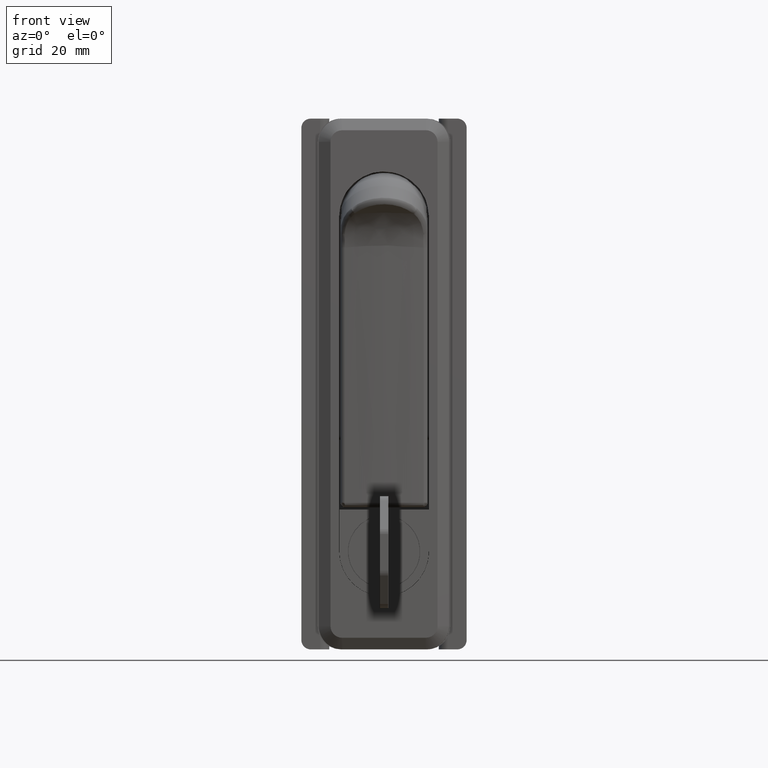
[diagram: clean part render]
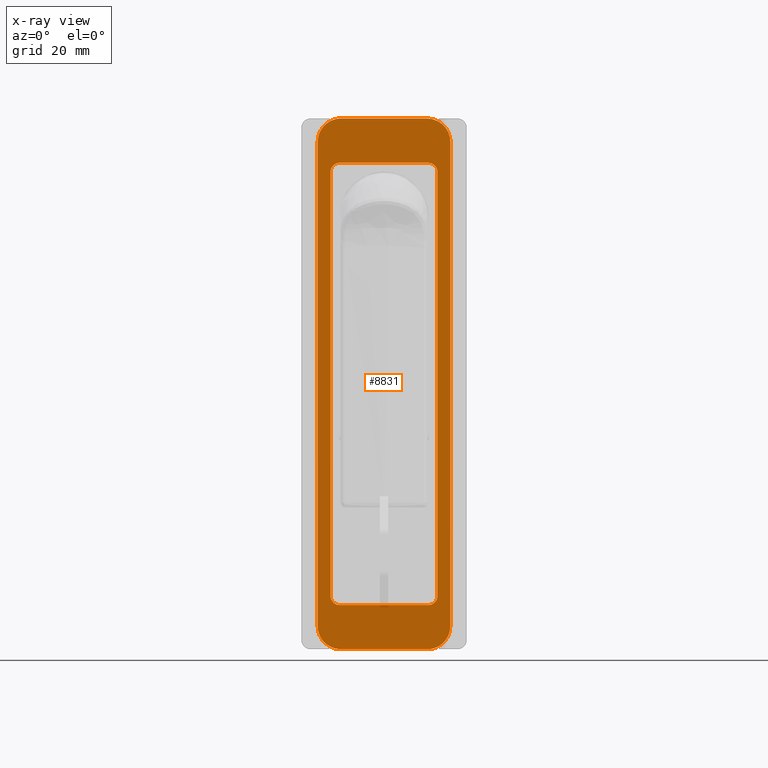
[diagram: x-ray — body ghosted, one internal face saturated and labeled with its STEP entity id]
A machine part, front view, then the same camera in x-ray: the body is ghosted and one INTERNAL B-rep face — a face not visible from any outside direction — is saturated and labeled: STEP entity #8831.
In plain terms, the highlighted face is a freeform B-spline surface patch.
Its self-contained STEP definition (entity closure, byte-faithful):
#8646=CARTESIAN_POINT('',(0.0,-15.673574944761469,26.694299779045870));
#8647=CARTESIAN_POINT('',(0.0,15.673575709191040,26.694299779045870));
#8648=CARTESIAN_POINT('',(0.0,-15.673574944761469,-98.694302836764123));
#8649=CARTESIAN_POINT('',(0.0,15.673575709191040,-98.694302836764123));
#8650=B_SPLINE_SURFACE_WITH_KNOTS('',1,1,((#8646,#8648),(#8647,#8649)),.UNSPECIFIED.,.F.,.F.,.U.,(2,2),(2,2),(0.0,31.347150653952511),(0.0,125.388602615810000),.UNSPECIFIED.);
#8651=CARTESIAN_POINT('',(0.0,-9.250000000000000,21.0));
#8652=VERTEX_POINT('',#8651);
#8653=CARTESIAN_POINT('',(0.0,9.250000000000000,21.0));
#8654=VERTEX_POINT('',#8653);
#8655=CARTESIAN_POINT('',(0.0,-9.250000000000000,21.0));
#8656=CARTESIAN_POINT('',(0.0,9.250000000000000,21.0));
#8657=QUASI_UNIFORM_CURVE('',1,(#8655,#8656),.UNSPECIFIED.,.F.,.U.);
#8658=EDGE_CURVE('',#8652,#8654,#8657,.T.);
#8659=ORIENTED_EDGE('',*,*,#8658,.T.);
#8660=CARTESIAN_POINT('',(0.0,14.250000000000000,16.0));
#8661=VERTEX_POINT('',#8660);
#8662=CARTESIAN_POINT('',(0.0,14.250000000000000,16.0));
#8663=CARTESIAN_POINT('',(0.0,14.249999999999996,21.000000000000004));
#8664=CARTESIAN_POINT('',(0.0,9.250000000000000,21.0));
#8672=(BOUNDED_CURVE()B_SPLINE_CURVE(2,(#8662,#8663,#8664),.UNSPECIFIED.,.F.,.U.)CURVE()GEOMETRIC_REPRESENTATION_ITEM()QUASI_UNIFORM_CURVE()RATIONAL_B_SPLINE_CURVE((1.0,0.707106781186548,1.0))REPRESENTATION_ITEM(''));
#8673=EDGE_CURVE('',#8661,#8654,#8672,.T.);
#8674=ORIENTED_EDGE('',*,*,#8673,.F.);
#8675=CARTESIAN_POINT('',(0.0,14.250000000000000,-88.0));
#8676=VERTEX_POINT('',#8675);
#8677=CARTESIAN_POINT('',(0.0,14.250000000000000,16.0));
#8678=CARTESIAN_POINT('',(0.0,14.250000000000000,-88.0));
#8679=QUASI_UNIFORM_CURVE('',1,(#8677,#8678),.UNSPECIFIED.,.F.,.U.);
#8680=EDGE_CURVE('',#8661,#8676,#8679,.T.);
#8681=ORIENTED_EDGE('',*,*,#8680,.T.);
#8682=CARTESIAN_POINT('',(0.0,9.250000000000000,-93.0));
#8683=VERTEX_POINT('',#8682);
#8684=CARTESIAN_POINT('',(0.0,9.250000000000000,-93.0));
#8685=CARTESIAN_POINT('',(0.0,14.249999999999996,-93.0));
#8686=CARTESIAN_POINT('',(0.0,14.250000000000000,-88.0));
#8694=(BOUNDED_CURVE()B_SPLINE_CURVE(2,(#8684,#8685,#8686),.UNSPECIFIED.,.F.,.U.)CURVE()GEOMETRIC_REPRESENTATION_ITEM()QUASI_UNIFORM_CURVE()RATIONAL_B_SPLINE_CURVE((1.0,0.707106781186548,1.0))REPRESENTATION_ITEM(''));
#8695=EDGE_CURVE('',#8683,#8676,#8694,.T.);
#8696=ORIENTED_EDGE('',*,*,#8695,.F.);
#8697=CARTESIAN_POINT('',(0.0,-9.250000000000000,-93.0));
#8698=VERTEX_POINT('',#8697);
#8699=CARTESIAN_POINT('',(0.0,9.250000000000000,-93.0));
#8700=CARTESIAN_POINT('',(0.0,-9.250000000000000,-93.0));
#8701=QUASI_UNIFORM_CURVE('',1,(#8699,#8700),.UNSPECIFIED.,.F.,.U.);
#8702=EDGE_CURVE('',#8683,#8698,#8701,.T.);
#8703=ORIENTED_EDGE('',*,*,#8702,.T.);
#8704=CARTESIAN_POINT('',(0.0,-14.250000000000000,-88.0));
#8705=VERTEX_POINT('',#8704);
#8706=CARTESIAN_POINT('',(0.0,-14.250000000000000,-88.0));
#8707=CARTESIAN_POINT('',(0.0,-14.249999999999996,-93.0));
#8708=CARTESIAN_POINT('',(0.0,-9.250000000000000,-93.0));
#8716=(BOUNDED_CURVE()B_SPLINE_CURVE(2,(#8706,#8707,#8708),.UNSPECIFIED.,.F.,.U.)CURVE()GEOMETRIC_REPRESENTATION_ITEM()QUASI_UNIFORM_CURVE()RATIONAL_B_SPLINE_CURVE((1.0,0.707106781186548,1.0))REPRESENTATION_ITEM(''));
#8717=EDGE_CURVE('',#8705,#8698,#8716,.T.);
#8718=ORIENTED_EDGE('',*,*,#8717,.F.);
#8719=CARTESIAN_POINT('',(0.0,-14.250000000000000,16.0));
#8720=VERTEX_POINT('',#8719);
#8721=CARTESIAN_POINT('',(0.0,-14.250000000000000,-88.0));
#8722=CARTESIAN_POINT('',(0.0,-14.250000000000000,16.0));
#8723=QUASI_UNIFORM_CURVE('',1,(#8721,#8722),.UNSPECIFIED.,.F.,.U.);
#8724=EDGE_CURVE('',#8705,#8720,#8723,.T.);
#8725=ORIENTED_EDGE('',*,*,#8724,.T.);
#8726=CARTESIAN_POINT('',(0.0,-9.250000000000000,21.0));
#8727=CARTESIAN_POINT('',(0.0,-14.249999999999996,21.000000000000004));
#8728=CARTESIAN_POINT('',(0.0,-14.250000000000000,16.0));
#8736=(BOUNDED_CURVE()B_SPLINE_CURVE(2,(#8726,#8727,#8728),.UNSPECIFIED.,.F.,.U.)CURVE()GEOMETRIC_REPRESENTATION_ITEM()QUASI_UNIFORM_CURVE()RATIONAL_B_SPLINE_CURVE((1.0,0.707106781186548,1.0))REPRESENTATION_ITEM(''));
#8737=EDGE_CURVE('',#8652,#8720,#8736,.T.);
#8738=ORIENTED_EDGE('',*,*,#8737,.F.);
#8739=EDGE_LOOP('',(#8659,#8674,#8681,#8696,#8703,#8718,#8725,#8738));
#8740=FACE_OUTER_BOUND('',#8739,.T.);
#8741=CARTESIAN_POINT('',(0.0,-9.500000000000000,11.500000000000000));
#8742=VERTEX_POINT('',#8741);
#8743=CARTESIAN_POINT('',(0.0,9.500000000000000,11.500000000000000));
#8744=VERTEX_POINT('',#8743);
#8745=CARTESIAN_POINT('',(0.0,-9.500000000000000,11.500000000000000));
#8746=CARTESIAN_POINT('',(0.0,9.500000000000000,11.500000000000000));
#8747=QUASI_UNIFORM_CURVE('',1,(#8745,#8746),.UNSPECIFIED.,.F.,.U.);
#8748=EDGE_CURVE('',#8742,#8744,#8747,.T.);
#8749=ORIENTED_EDGE('',*,*,#8748,.F.);
#8750=CARTESIAN_POINT('',(0.0,-11.500000000000000,9.500000000000000));
#8751=VERTEX_POINT('',#8750);
#8752=CARTESIAN_POINT('',(0.0,-9.500000000000000,11.500000000000000));
#8753=CARTESIAN_POINT('',(0.0,-11.500000000000000,11.500000000000000));
#8754=CARTESIAN_POINT('',(0.0,-11.500000000000000,9.500000000000000));
#8762=(BOUNDED_CURVE()B_SPLINE_CURVE(2,(#8752,#8753,#8754),.UNSPECIFIED.,.F.,.U.)CURVE()GEOMETRIC_REPRESENTATION_ITEM()QUASI_UNIFORM_CURVE()RATIONAL_B_SPLINE_CURVE((1.0,0.707106781186548,1.0))REPRESENTATION_ITEM(''));
#8763=EDGE_CURVE('',#8742,#8751,#8762,.T.);
#8764=ORIENTED_EDGE('',*,*,#8763,.T.);
#8765=CARTESIAN_POINT('',(0.0,-11.500000000000000,-81.500000000000000));
#8766=VERTEX_POINT('',#8765);
#8767=CARTESIAN_POINT('',(0.0,-11.500000000000000,-81.500000000000000));
#8768=CARTESIAN_POINT('',(0.0,-11.500000000000000,9.500000000000000));
#8769=QUASI_UNIFORM_CURVE('',1,(#8767,#8768),.UNSPECIFIED.,.F.,.U.);
#8770=EDGE_CURVE('',#8766,#8751,#8769,.T.);
#8771=ORIENTED_EDGE('',*,*,#8770,.F.);
#8772=CARTESIAN_POINT('',(0.0,-9.500000000000000,-83.500000000000000));
#8773=VERTEX_POINT('',#8772);
#8774=CARTESIAN_POINT('',(0.0,-11.500000000000000,-81.500000000000000));
#8775=CARTESIAN_POINT('',(0.0,-11.500000000000000,-83.500000000000000));
#8776=CARTESIAN_POINT('',(0.0,-9.500000000000000,-83.500000000000000));
#8784=(BOUNDED_CURVE()B_SPLINE_CURVE(2,(#8774,#8775,#8776),.UNSPECIFIED.,.F.,.U.)CURVE()GEOMETRIC_REPRESENTATION_ITEM()QUASI_UNIFORM_CURVE()RATIONAL_B_SPLINE_CURVE((1.0,0.707106781186548,1.0))REPRESENTATION_ITEM(''));
#8785=EDGE_CURVE('',#8766,#8773,#8784,.T.);
#8786=ORIENTED_EDGE('',*,*,#8785,.T.);
#8787=CARTESIAN_POINT('',(0.0,9.500000000000000,-83.500000000000000));
#8788=VERTEX_POINT('',#8787);
#8789=CARTESIAN_POINT('',(0.0,9.500000000000000,-83.500000000000000));
#8790=CARTESIAN_POINT('',(0.0,-9.500000000000000,-83.500000000000000));
#8791=QUASI_UNIFORM_CURVE('',1,(#8789,#8790),.UNSPECIFIED.,.F.,.U.);
#8792=EDGE_CURVE('',#8788,#8773,#8791,.T.);
#8793=ORIENTED_EDGE('',*,*,#8792,.F.);
#8794=CARTESIAN_POINT('',(0.0,11.500000000000000,-81.500000000000000));
#8795=VERTEX_POINT('',#8794);
#8796=CARTESIAN_POINT('',(0.0,9.500000000000000,-83.500000000000000));
#8797=CARTESIAN_POINT('',(0.0,11.500000000000000,-83.500000000000000));
#8798=CARTESIAN_POINT('',(0.0,11.500000000000000,-81.500000000000000));
#8806=(BOUNDED_CURVE()B_SPLINE_CURVE(2,(#8796,#8797,#8798),.UNSPECIFIED.,.F.,.U.)CURVE()GEOMETRIC_REPRESENTATION_ITEM()QUASI_UNIFORM_CURVE()RATIONAL_B_SPLINE_CURVE((1.0,0.707106781186548,1.0))REPRESENTATION_ITEM(''));
#8807=EDGE_CURVE('',#8788,#8795,#8806,.T.);
#8808=ORIENTED_EDGE('',*,*,#8807,.T.);
#8809=CARTESIAN_POINT('',(0.0,11.500000000000000,9.500000000000000));
#8810=VERTEX_POINT('',#8809);
#8811=CARTESIAN_POINT('',(0.0,11.500000000000000,9.500000000000000));
#8812=CARTESIAN_POINT('',(0.0,11.500000000000000,-81.500000000000000));
#8813=QUASI_UNIFORM_CURVE('',1,(#8811,#8812),.UNSPECIFIED.,.F.,.U.);
#8814=EDGE_CURVE('',#8810,#8795,#8813,.T.);
#8815=ORIENTED_EDGE('',*,*,#8814,.F.);
#8816=CARTESIAN_POINT('',(0.0,11.500000000000000,9.500000000000000));
#8817=CARTESIAN_POINT('',(0.0,11.500000000000000,11.500000000000000));
#8818=CARTESIAN_POINT('',(0.0,9.500000000000000,11.500000000000000));
#8826=(BOUNDED_CURVE()B_SPLINE_CURVE(2,(#8816,#8817,#8818),.UNSPECIFIED.,.F.,.U.)CURVE()GEOMETRIC_REPRESENTATION_ITEM()QUASI_UNIFORM_CURVE()RATIONAL_B_SPLINE_CURVE((1.0,0.707106781186548,1.0))REPRESENTATION_ITEM(''));
#8827=EDGE_CURVE('',#8810,#8744,#8826,.T.);
#8828=ORIENTED_EDGE('',*,*,#8827,.T.);
#8829=EDGE_LOOP('',(#8749,#8764,#8771,#8786,#8793,#8808,#8815,#8828));
#8830=FACE_BOUND('',#8829,.T.);
#8831=ADVANCED_FACE('',(#8740,#8830),#8650,.T.);